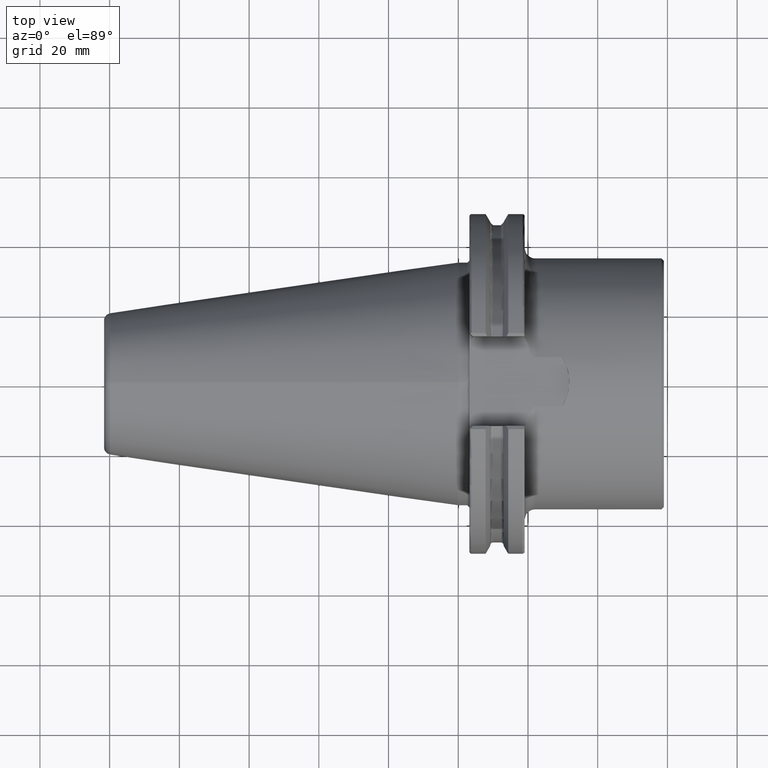
[diagram: clean part render]
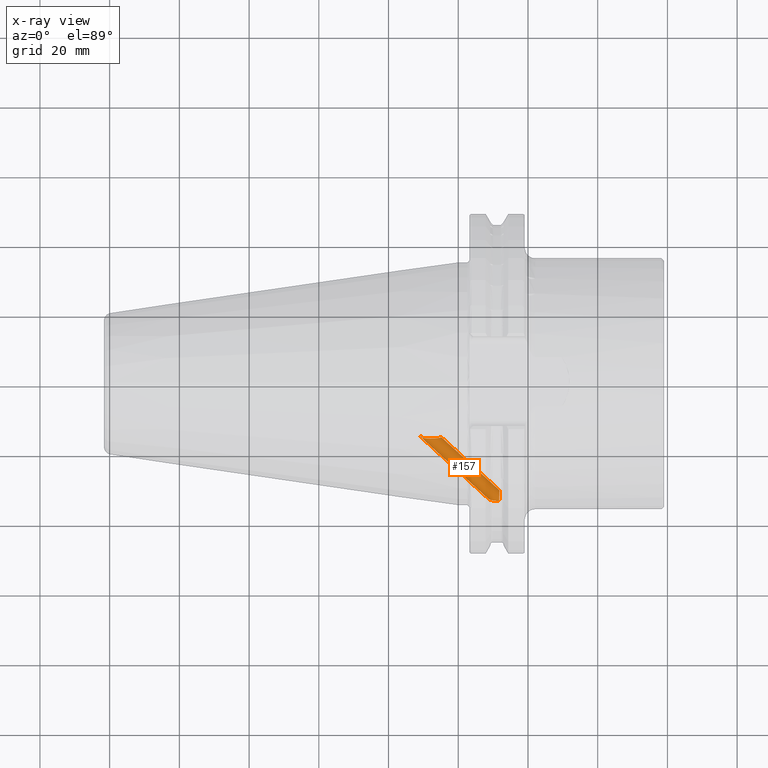
[diagram: x-ray — body ghosted, one internal face saturated and labeled with its STEP entity id]
A machine part, top view, then the same camera in x-ray: the body is ghosted and one INTERNAL B-rep face — a face not visible from any outside direction — is saturated and labeled: STEP entity #157.
In plain terms, the highlighted cylindrical surface (edge-blend (fillet) strip) has radius 2.1 mm, axis along (-0.7193, 0.6528, 0.2376).
Its self-contained STEP definition (entity closure, byte-faithful):
#67 = CARTESIAN_POINT ( 'NONE',  ( 11.72555539947904900, -33.46296833265302000, -9.944751101079097200 ) ) ;
#157 = ADVANCED_FACE ( 'NONE', ( #2224 ), #2084, .F. ) ;
#247 = VECTOR ( 'NONE', #3058, 1000.000000000000000 ) ;
#296 = CARTESIAN_POINT ( 'NONE',  ( 11.72555539947904900, -33.46296833265302000, -9.944751101079097200 ) ) ;
#345 = CARTESIAN_POINT ( 'NONE',  ( -9.187809603379015800, -15.58026256487469800, -3.641333363824451400 ) ) ;
#368 = CARTESIAN_POINT ( 'NONE',  ( -10.72391815553437400, -14.84485475509928600, -5.969111097978173900 ) ) ;
#416 = CARTESIAN_POINT ( 'NONE',  ( 11.77155872806720900, -32.22505207149789200, -9.494186429504509300 ) ) ;
#474 = ORIENTED_EDGE ( 'NONE', *, *, #4455, .F. ) ;
#507 = CARTESIAN_POINT ( 'NONE',  ( -10.72391815553437400, -14.84485475509928600, -5.969111097978173900 ) ) ;
#525 = CARTESIAN_POINT ( 'NONE',  ( 11.80819675353120200, -31.03653712749914500, -9.692019647567896400 ) ) ;
#608 = B_SPLINE_CURVE_WITH_KNOTS ( 'NONE', 3,
 ( #2597, #5397, #3530, #796, #4025, #1251, #4501, #1711, #4985, #2173, #5416, #2616, #5834, #3064, #345, #3560, #816, #4048, #1268, #4526, #1731, #5005, #2189, #5443, #2638, #5851, #3085, #368 ),
 .UNSPECIFIED., .F., .F.,
 ( 4, 2, 2, 2, 2, 2, 2, 2, 2, 2, 2, 2, 2, 4 ),
 ( 1.226634733346699300E-018, 0.0005051047278077820700, 0.001010209455615563000, 0.002020418911231126500, 0.003030628366846690700, 0.004040837822462253100, 0.004545942550270032500, 0.005051047278077811100, 0.005556152005885590600, 0.006061256733693369200, 0.006566361461501148700, 0.007071466189308928100, 0.007576570917116706700, 0.008081675644924487000 ),
 .UNSPECIFIED. ) ;
#692 = ORIENTED_EDGE ( 'NONE', *, *, #977, .F. ) ;
#796 = CARTESIAN_POINT ( 'NONE',  ( -5.241425761457272800, -15.37520939492338300, -4.429476338809779500 ) ) ;
#801 = CARTESIAN_POINT ( 'NONE',  ( 11.82055202424863800, -30.38133642868862000, -10.45770145103171500 ) ) ;
#816 = CARTESIAN_POINT ( 'NONE',  ( -9.655070127581900900, -15.53352654549303200, -3.836322605491919700 ) ) ;
#829 = VERTEX_POINT ( 'NONE', #3541 ) ;
#939 = EDGE_CURVE ( 'NONE', #829, #3703, #1641, .T. ) ;
#977 = EDGE_CURVE ( 'NONE', #4143, #829, #1201, .T. ) ;
#1116 = VERTEX_POINT ( 'NONE', #507 ) ;
#1199 = CARTESIAN_POINT ( 'NONE',  ( 9.097247851031653500, -33.17410876549282500, -10.47003209740926100 ) ) ;
#1201 =( BOUNDED_CURVE ( )  B_SPLINE_CURVE ( 3, ( #296, #416, #525, #801 ),
 .UNSPECIFIED., .F., .F. ) 
 B_SPLINE_CURVE_WITH_KNOTS ( ( 4, 4 ),
 ( 1.570796326794897000, 2.869680934326237900 ),
 .UNSPECIFIED. ) 
 CURVE ( )  GEOMETRIC_REPRESENTATION_ITEM ( )  RATIONAL_B_SPLINE_CURVE ( ( 1.000000000000000000, 0.8642807899400614100, 0.8642807899400614100, 1.000000000000000000 ) ) 
 REPRESENTATION_ITEM ( '' )  );
#1205 = CARTESIAN_POINT ( 'NONE',  ( -4.874928748951012900, -15.20868914867485700, -4.969484317208359600 ) ) ;
#1251 = CARTESIAN_POINT ( 'NONE',  ( -5.759805885223323200, -15.49111314527733900, -4.008734039244028900 ) ) ;
#1268 = CARTESIAN_POINT ( 'NONE',  ( -10.07857907525522400, -15.46475691020914300, -4.105456900802755300 ) ) ;
#1286 = VECTOR ( 'NONE', #3642, 1000.000000000000000 ) ;
#1326 = CARTESIAN_POINT ( 'NONE',  ( 8.691338826902779100, -32.46324165704743300, -12.38167950607298300 ) ) ;
#1455 = ORIENTED_EDGE ( 'NONE', *, *, #939, .F. ) ;
#1493 = LINE ( 'NONE', #5831, #1286 ) ;
#1557 = ORIENTED_EDGE ( 'NONE', *, *, #5655, .F. ) ;
#1578 = EDGE_CURVE ( 'NONE', #4566, #1116, #1493, .T. ) ;
#1641 =( BOUNDED_CURVE ( )  B_SPLINE_CURVE ( 3, ( #2648, #2609, #2201, #1741 ),
 .UNSPECIFIED., .F., .F. ) 
 B_SPLINE_CURVE_WITH_KNOTS ( ( 4, 4 ),
 ( 2.869680934326237900, 2.885522207360315900 ),
 .UNSPECIFIED. ) 
 CURVE ( )  GEOMETRIC_REPRESENTATION_ITEM ( )  RATIONAL_B_SPLINE_CURVE ( ( 1.000000000000000000, 0.9999790879483843000, 0.9999790879483843000, 1.000000000000000000 ) ) 
 REPRESENTATION_ITEM ( '' )  );
#1711 = CARTESIAN_POINT ( 'NONE',  ( -6.690066986561897800, -15.58718921600827300, -3.613080860006654800 ) ) ;
#1731 = CARTESIAN_POINT ( 'NONE',  ( -10.43783646780265800, -15.36797444053827600, -4.454825765677187900 ) ) ;
#1741 = CARTESIAN_POINT ( 'NONE',  ( 11.82095967063952600, -30.35938337405601200, -10.48388604371606900 ) ) ;
#1767 = ORIENTED_EDGE ( 'NONE', *, *, #4912, .F. ) ;
#1768 = CARTESIAN_POINT ( 'NONE',  ( -24.93080202100918200, 0.5191080774785319400, 0.1889398885693437100 ) ) ;
#2057 = ORIENTED_EDGE ( 'NONE', *, *, #1578, .T. ) ;
#2084 = CYLINDRICAL_SURFACE ( 'NONE', #5284, 2.100000000000004100 ) ;
#2173 = CARTESIAN_POINT ( 'NONE',  ( -7.690318399894351000, -15.62464781899999300, -3.445631312546236600 ) ) ;
#2189 = CARTESIAN_POINT ( 'NONE',  ( -10.69581986116785000, -15.23972032282597900, -4.876158411108491500 ) ) ;
#2201 = CARTESIAN_POINT ( 'NONE',  ( 11.82082777174912500, -30.36660167304957300, -10.47509740268292300 ) ) ;
#2208 = ORIENTED_EDGE ( 'NONE', *, *, #3627, .F. ) ;
#2224 = FACE_OUTER_BOUND ( 'NONE', #4816, .T. ) ;
#2247 = DIRECTION ( 'NONE',  ( 0.6720074547708657600, 0.5672899082075223400, 0.4760127527475330700 ) ) ;
#2330 = DIRECTION ( 'NONE',  ( -0.7193398003386548600, 0.6527653446874781600, 0.2375871554267654200 ) ) ;
#2564 = CARTESIAN_POINT ( 'NONE',  ( 11.72555539947904900, -33.46296833265302000, -9.944751101079097200 ) ) ;
#2597 = CARTESIAN_POINT ( 'NONE',  ( -4.874928748951012900, -15.20868914867485700, -4.969484317208359600 ) ) ;
#2609 = CARTESIAN_POINT ( 'NONE',  ( 11.82069188677719600, -30.37391951095811400, -10.46636902259313500 ) ) ;
#2616 = CARTESIAN_POINT ( 'NONE',  ( -8.530024998892356400, -15.61483627380426900, -3.489582205072540200 ) ) ;
#2638 = CARTESIAN_POINT ( 'NONE',  ( -10.81643818934996800, -15.08227476069242300, -5.343574507103909400 ) ) ;
#2648 = CARTESIAN_POINT ( 'NONE',  ( 11.82055202424863800, -30.38133642868862000, -10.45770145103171500 ) ) ;
#2859 =( BOUNDED_CURVE ( )  B_SPLINE_CURVE ( 3, ( #4587, #5077, #4436, #4186 ),
 .UNSPECIFIED., .F., .T. ) 
 B_SPLINE_CURVE_WITH_KNOTS ( ( 4, 4 ),
 ( 6.027114860950110400, 6.555097026443141800 ),
 .UNSPECIFIED. ) 
 CURVE ( )  GEOMETRIC_REPRESENTATION_ITEM ( )  RATIONAL_B_SPLINE_CURVE ( ( 1.000000000000000000, 0.9769041696169532600, 0.9769041696169532600, 1.000000000000000000 ) ) 
 REPRESENTATION_ITEM ( '' )  );
#3056 = CARTESIAN_POINT ( 'NONE',  ( 11.82095967063952600, -30.35938337405601200, -10.48388604371606900 ) ) ;
#3058 = DIRECTION ( 'NONE',  ( -0.7193398003386548600, 0.6527653446874781600, 0.2375871554267654200 ) ) ;
#3064 = CARTESIAN_POINT ( 'NONE',  ( -9.027139010852755200, -15.59146393232473000, -3.592738060293955400 ) ) ;
#3085 = CARTESIAN_POINT ( 'NONE',  ( -10.77914200087431200, -14.90504803125855200, -5.819413692928958600 ) ) ;
#3530 = CARTESIAN_POINT ( 'NONE',  ( -5.029301577111223900, -15.30025592418315100, -4.681825843441255400 ) ) ;
#3541 = CARTESIAN_POINT ( 'NONE',  ( 11.82055202424863800, -30.38133642868862000, -10.45770145103171500 ) ) ;
#3560 = CARTESIAN_POINT ( 'NONE',  ( -9.501099145436047200, -15.55139985719003300, -3.762692219505413800 ) ) ;
#3627 = EDGE_CURVE ( 'NONE', #4566, #3821, #2859, .T. ) ;
#3642 = DIRECTION ( 'NONE',  ( -0.7193398003386548600, 0.6527653446874781600, 0.2375871554267654200 ) ) ;
#3703 = VERTEX_POINT ( 'NONE', #3056 ) ;
#3821 = VERTEX_POINT ( 'NONE', #4426 ) ;
#4025 = CARTESIAN_POINT ( 'NONE',  ( -5.365262544313483600, -15.40777496671570100, -4.314116867256123200 ) ) ;
#4048 = CARTESIAN_POINT ( 'NONE',  ( -9.943499724162965200, -15.49017820980102700, -4.007767096719904400 ) ) ;
#4143 = VERTEX_POINT ( 'NONE', #67 ) ;
#4186 = CARTESIAN_POINT ( 'NONE',  ( 8.704303523555449100, -32.83848506984534100, -11.35203041758042800 ) ) ;
#4426 = CARTESIAN_POINT ( 'NONE',  ( 8.704303523555449100, -32.83848506984534100, -11.35203041758042800 ) ) ;
#4436 = CARTESIAN_POINT ( 'NONE',  ( 8.554301675974706100, -32.71036469523058100, -11.68872284024121000 ) ) ;
#4445 = CARTESIAN_POINT ( 'NONE',  ( 8.704303523555449100, -32.83848506984534100, -11.35203041758042800 ) ) ;
#4455 = EDGE_CURVE ( 'NONE', #3821, #4143, #4721, .T. ) ;
#4501 = CARTESIAN_POINT ( 'NONE',  ( -6.063102376318654200, -15.53040501451902800, -3.849849482978923400 ) ) ;
#4526 = CARTESIAN_POINT ( 'NONE',  ( -10.32661793444167700, -15.40354312179251100, -4.329473634437440500 ) ) ;
#4566 = VERTEX_POINT ( 'NONE', #1326 ) ;
#4587 = CARTESIAN_POINT ( 'NONE',  ( 8.691338826902779100, -32.46324165704743300, -12.38167950607298300 ) ) ;
#4721 =( BOUNDED_CURVE ( )  B_SPLINE_CURVE ( 3, ( #4445, #1199, #5365, #2564 ),
 .UNSPECIFIED., .F., .T. ) 
 B_SPLINE_CURVE_WITH_KNOTS ( ( 4, 4 ),
 ( 0.2719117192635555600, 1.570796326794896600 ),
 .UNSPECIFIED. ) 
 CURVE ( )  GEOMETRIC_REPRESENTATION_ITEM ( )  RATIONAL_B_SPLINE_CURVE ( ( 1.000000000000000000, 0.8642807899400614100, 0.8642807899400614100, 1.000000000000000000 ) ) 
 REPRESENTATION_ITEM ( '' )  );
#4816 = EDGE_LOOP ( 'NONE', ( #2208, #2057, #1767, #1557, #1455, #692, #474 ) ) ;
#4912 = EDGE_CURVE ( 'NONE', #5610, #1116, #608, .T. ) ;
#4985 = CARTESIAN_POINT ( 'NONE',  ( -7.018845368725834500, -15.60516880268108500, -3.532803596240452000 ) ) ;
#5005 = CARTESIAN_POINT ( 'NONE',  ( -10.62169920310445900, -15.28659707554763100, -4.726527357102433800 ) ) ;
#5064 = LINE ( 'NONE', #5411, #247 ) ;
#5077 = CARTESIAN_POINT ( 'NONE',  ( 8.549877940581522400, -32.58232640704480300, -12.04005347584022400 ) ) ;
#5284 = AXIS2_PLACEMENT_3D ( 'NONE', #1768, #2330, #2247 ) ;
#5365 = CARTESIAN_POINT ( 'NONE',  ( 10.26247559919326800, -33.41495767712604000, -9.927276651539665800 ) ) ;
#5397 = CARTESIAN_POINT ( 'NONE',  ( -4.940252465053575300, -15.25804010178620000, -4.818449872354158900 ) ) ;
#5411 = CARTESIAN_POINT ( 'NONE',  ( -23.51958636599036000, 1.710416884714331100, 1.188566669339165000 ) ) ;
#5416 = CARTESIAN_POINT ( 'NONE',  ( -8.026143734177614100, -15.62603572121499000, -3.439213708684370800 ) ) ;
#5443 = CARTESIAN_POINT ( 'NONE',  ( -10.79235408223386400, -15.13836022968673200, -5.182281922514292200 ) ) ;
#5610 = VERTEX_POINT ( 'NONE', #1205 ) ;
#5655 = EDGE_CURVE ( 'NONE', #3703, #5610, #5064, .T. ) ;
#5831 = CARTESIAN_POINT ( 'NONE',  ( -26.34201767602800400, -0.6722007297572669700, -0.8106868922004779600 ) ) ;
#5834 = CARTESIAN_POINT ( 'NONE',  ( -8.698742410854164200, -15.60875548447497800, -3.516854638557010700 ) ) ;
#5851 = CARTESIAN_POINT ( 'NONE',  ( -10.80957210280714900, -14.96553906846271300, -5.662282301361047500 ) ) ;